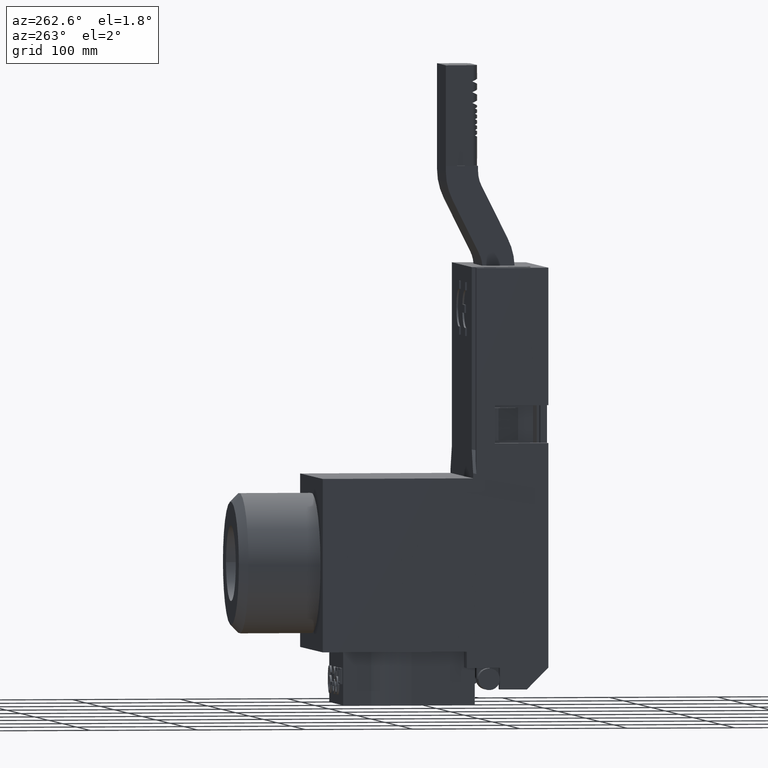
[diagram: clean part render]
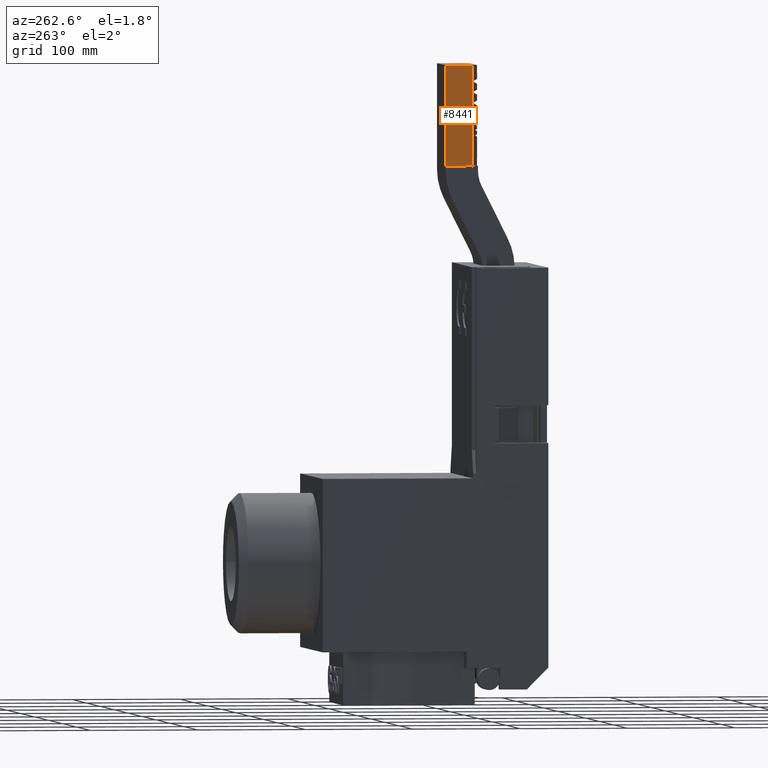
[diagram: same view with one face highlighted and labeled with its STEP entity id]
A machine part, auxiliary view. The second image highlights one B-rep face of the part: STEP entity #8441.
In plain terms, the highlighted planar face has unit normal (-0.9962, -0.0872, -0).
Its self-contained STEP definition (entity closure, byte-faithful):
#1450=CARTESIAN_POINT('',(-202.09263777450505,117.56537027460963,497.099999999994));
#1451=VERTEX_POINT('',#1450);
#8051=CARTESIAN_POINT('',(-199.86729548909898,92.129591560871148,575.30320695147111));
#8052=VERTEX_POINT('',#8051);
#8068=CARTESIAN_POINT('',(-199.86729548909898,92.12959156087112,590.099999999994));
#8069=VERTEX_POINT('',#8068);
#8077=CARTESIAN_POINT('',(-199.86729548909898,92.12959156087112,590.099999999994));
#8078=DIRECTION('',(0.0,0.0,-1.0));
#8079=VECTOR('',#8078,14.796793048522886);
#8080=LINE('',#8077,#8079);
#8081=EDGE_CURVE('',#8069,#8052,#8080,.T.);
#8093=CARTESIAN_POINT('',(-199.86729548909898,92.12959156087129,565.30320695147134));
#8094=VERTEX_POINT('',#8093);
#8110=CARTESIAN_POINT('',(-199.86729548909898,92.129591560871148,574.89679304851722));
#8111=VERTEX_POINT('',#8110);
#8119=CARTESIAN_POINT('',(-199.86729548909898,92.129591560871148,574.89679304851722));
#8120=DIRECTION('',(0.0,0.0,-1.0));
#8121=VECTOR('',#8120,9.593586097045886);
#8122=LINE('',#8119,#8121);
#8123=EDGE_CURVE('',#8111,#8094,#8122,.T.);
#8135=CARTESIAN_POINT('',(-199.86729548909898,92.12959156087129,555.30320695147111));
#8136=VERTEX_POINT('',#8135);
#8152=CARTESIAN_POINT('',(-199.86729548909898,92.12959156087129,564.89679304851711));
#8153=VERTEX_POINT('',#8152);
#8161=CARTESIAN_POINT('',(-199.86729548909898,92.129591560871205,564.89679304851711));
#8162=DIRECTION('',(0.0,0.0,-1.0));
#8163=VECTOR('',#8162,9.593586097046);
#8164=LINE('',#8161,#8163);
#8165=EDGE_CURVE('',#8153,#8136,#8164,.T.);
#8220=CARTESIAN_POINT('',(-199.86729548909898,92.12959156087129,554.896793048517));
#8221=VERTEX_POINT('',#8220);
#8229=CARTESIAN_POINT('',(-199.86729548909898,92.12959156087139,497.099999999994));
#8230=VERTEX_POINT('',#8229);
#8231=CARTESIAN_POINT('',(-199.86729548909898,92.129591560871233,554.896793048517));
#8232=DIRECTION('',(0.0,0.0,-1.0));
#8233=VECTOR('',#8232,57.796793048523);
#8234=LINE('',#8231,#8233);
#8235=EDGE_CURVE('',#8221,#8230,#8234,.T.);
#8368=CARTESIAN_POINT('',(-202.09263777450505,117.56537027460938,590.099999999994));
#8369=DIRECTION('',(-0.996194698091745,-0.087155742747659,-1.959441E-016));
#8370=DIRECTION('',(0.0,0.0,1.0));
#8371=AXIS2_PLACEMENT_3D('',#8368,#8369,#8370);
#8372=PLANE('',#8371);
#8373=CARTESIAN_POINT('',(-199.90542118635699,92.565370274609521,555.09999999999411));
#8374=VERTEX_POINT('',#8373);
#8375=CARTESIAN_POINT('',(-199.90542118635705,92.565370274609521,555.09999999999411));
#8376=DIRECTION('',(0.079043566320935,-0.903472097245621,-0.421295957875064));
#8377=VECTOR('',#8376,0.482337766785256);
#8378=LINE('',#8375,#8377);
#8379=EDGE_CURVE('',#8374,#8221,#8378,.T.);
#8380=ORIENTED_EDGE('',*,*,#8379,.F.);
#8381=CARTESIAN_POINT('',(-199.86729548909898,92.129591560871376,555.30320695147134));
#8382=DIRECTION('',(-0.07904356632106,0.903472097245591,-0.421295957875105));
#8383=VECTOR('',#8382,0.482337766785209);
#8384=LINE('',#8381,#8383);
#8385=EDGE_CURVE('',#8136,#8374,#8384,.T.);
#8386=ORIENTED_EDGE('',*,*,#8385,.F.);
#8387=ORIENTED_EDGE('',*,*,#8165,.F.);
#8388=CARTESIAN_POINT('',(-199.90542118635699,92.565370274609521,565.099999999994));
#8389=VERTEX_POINT('',#8388);
#8390=CARTESIAN_POINT('',(-199.90542118635705,92.565370274609506,565.099999999994));
#8391=DIRECTION('',(0.07904356632107,-0.903472097245675,-0.421295957874922));
#8392=VECTOR('',#8391,0.482337766785149);
#8393=LINE('',#8390,#8392);
#8394=EDGE_CURVE('',#8389,#8153,#8393,.T.);
#8395=ORIENTED_EDGE('',*,*,#8394,.F.);
#8396=CARTESIAN_POINT('',(-199.86729548909898,92.12959156087129,565.30320695147134));
#8397=DIRECTION('',(-0.079043566320924,0.903472097245648,-0.421295957875008));
#8398=VECTOR('',#8397,0.48233776678532);
#8399=LINE('',#8396,#8398);
#8400=EDGE_CURVE('',#8094,#8389,#8399,.T.);
#8401=ORIENTED_EDGE('',*,*,#8400,.F.);
#8402=ORIENTED_EDGE('',*,*,#8123,.F.);
#8403=CARTESIAN_POINT('',(-199.90542118635699,92.565370274609478,575.09999999999411));
#8404=VERTEX_POINT('',#8403);
#8405=CARTESIAN_POINT('',(-199.90542118635699,92.565370274609478,575.09999999999411));
#8406=DIRECTION('',(0.079043566320937,-0.903472097245615,-0.421295957875075));
#8407=VECTOR('',#8406,0.482337766785243);
#8408=LINE('',#8405,#8407);
#8409=EDGE_CURVE('',#8404,#8111,#8408,.T.);
#8410=ORIENTED_EDGE('',*,*,#8409,.F.);
#8411=CARTESIAN_POINT('',(-199.86729548909898,92.129591560871233,575.30320695147134));
#8412=DIRECTION('',(-0.079043566321048,0.903472097245623,-0.421295957875038));
#8413=VECTOR('',#8412,0.482337766785286);
#8414=LINE('',#8411,#8413);
#8415=EDGE_CURVE('',#8052,#8404,#8414,.T.);
#8416=ORIENTED_EDGE('',*,*,#8415,.F.);
#8417=ORIENTED_EDGE('',*,*,#8081,.F.);
#8418=CARTESIAN_POINT('',(-202.09263777450505,117.56537027460938,590.099999999994));
#8419=VERTEX_POINT('',#8418);
#8420=CARTESIAN_POINT('',(-202.09263777450505,117.56537027460938,590.09999999999434));
#8421=DIRECTION('',(0.087155742747659,-0.996194698091745,-4.452556E-015));
#8422=VECTOR('',#8421,25.532939256213275);
#8423=LINE('',#8420,#8422);
#8424=EDGE_CURVE('',#8419,#8069,#8423,.T.);
#8425=ORIENTED_EDGE('',*,*,#8424,.F.);
#8426=CARTESIAN_POINT('',(-202.09263777450505,117.56537027460963,497.099999999994));
#8427=DIRECTION('',(0.0,0.0,1.0));
#8428=VECTOR('',#8427,93.0);
#8429=LINE('',#8426,#8428);
#8430=EDGE_CURVE('',#1451,#8419,#8429,.T.);
#8431=ORIENTED_EDGE('',*,*,#8430,.F.);
#8432=CARTESIAN_POINT('',(-202.09263777450505,117.56537027460963,497.099999999994));
#8433=DIRECTION('',(0.087155742747658,-0.996194698091746,0.0));
#8434=VECTOR('',#8433,25.532939256213243);
#8435=LINE('',#8432,#8434);
#8436=EDGE_CURVE('',#1451,#8230,#8435,.T.);
#8437=ORIENTED_EDGE('',*,*,#8436,.T.);
#8438=ORIENTED_EDGE('',*,*,#8235,.F.);
#8439=EDGE_LOOP('',(#8380,#8386,#8387,#8395,#8401,#8402,#8410,#8416,#8417,#8425,#8431,#8437,#8438));
#8440=FACE_OUTER_BOUND('',#8439,.T.);
#8441=ADVANCED_FACE('',(#8440),#8372,.T.);